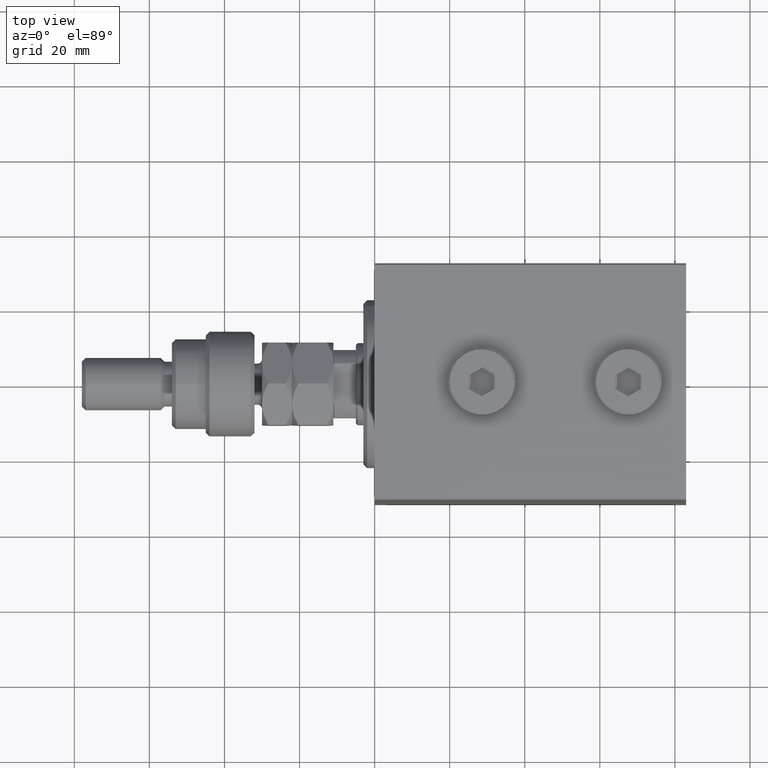
[diagram: clean part render]
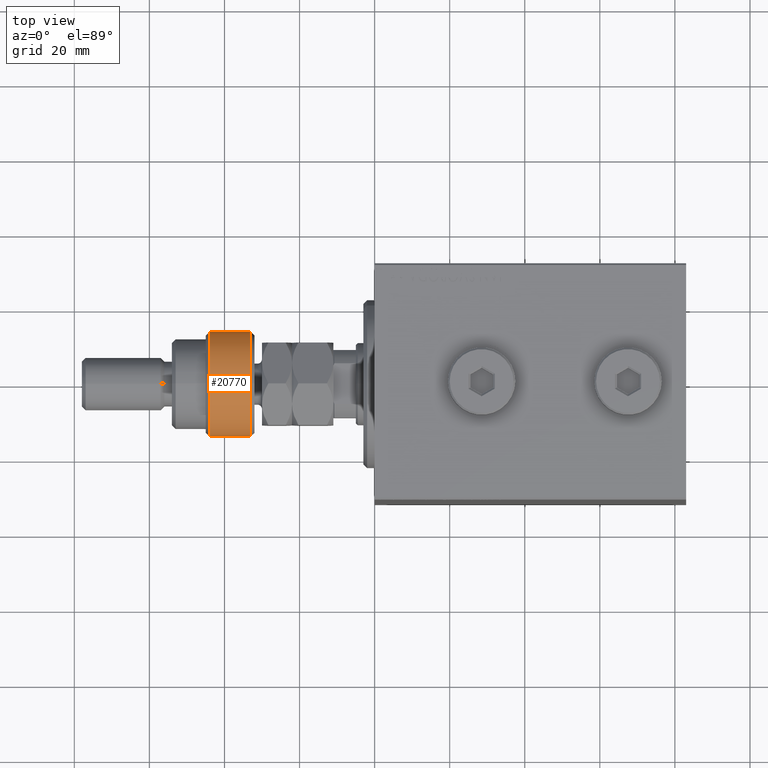
[diagram: same view with one face highlighted and labeled with its STEP entity id]
A machine part, top view. The second image highlights one B-rep face of the part: STEP entity #20770.
In plain terms, the highlighted cylindrical surface (partial cylindrical patch) has radius 14 mm, axis along (1, -0, -0).
Its self-contained STEP definition (entity closure, byte-faithful):
#148 = VERTEX_POINT ( 'NONE', #18008 ) ;
#228 = CARTESIAN_POINT ( 'NONE',  ( 14.00000000000000000, 0.000000000000000000, 1.000000000000032196 ) ) ;
#995 = ORIENTED_EDGE ( 'NONE', *, *, #17214, .F. ) ;
#2335 = EDGE_CURVE ( 'NONE', #23257, #6706, #20402, .T. ) ;
#2577 = LINE ( 'NONE', #10343, #13570 ) ;
#4001 = DIRECTION ( 'NONE',  ( -0.000000000000000000, -0.000000000000000000, -1.000000000000000000 ) ) ;
#5694 = CYLINDRICAL_SURFACE ( 'NONE', #40239, 14.00000000000000000 ) ;
#6706 = VERTEX_POINT ( 'NONE', #13170 ) ;
#7525 = VERTEX_POINT ( 'NONE', #47235 ) ;
#7650 = LINE ( 'NONE', #43940, #32382 ) ;
#8159 = AXIS2_PLACEMENT_3D ( 'NONE', #15248, #40880, #33159 ) ;
#9059 = ORIENTED_EDGE ( 'NONE', *, *, #2335, .T. ) ;
#10224 = ORIENTED_EDGE ( 'NONE', *, *, #47687, .T. ) ;
#10343 = CARTESIAN_POINT ( 'NONE',  ( -12.64911064067351809, -5.999999999999999112, 14.50000000000000000 ) ) ;
#10941 = EDGE_CURVE ( 'NONE', #22898, #7525, #14337, .T. ) ;
#12485 = CARTESIAN_POINT ( 'NONE',  ( 0.000000000000000000, 0.000000000000000000, 13.00000000000000000 ) ) ;
#13170 = CARTESIAN_POINT ( 'NONE',  ( -12.64911064067351809, -5.999999999999999112, 12.00000000000003553 ) ) ;
#13570 = VECTOR ( 'NONE', #25120, 1000.000000000000000 ) ;
#14337 = CIRCLE ( 'NONE', #8159, 14.00000000000000000 ) ;
#15248 = CARTESIAN_POINT ( 'NONE',  ( 0.000000000000000000, 0.000000000000000000, 1.000000000000032196 ) ) ;
#17214 = EDGE_CURVE ( 'NONE', #23257, #7525, #7650, .T. ) ;
#18008 = CARTESIAN_POINT ( 'NONE',  ( -12.64911064067351809, -5.999999999999999112, 1.000000000000035527 ) ) ;
#20402 = CIRCLE ( 'NONE', #47393, 14.00000000000000000 ) ;
#20505 = CIRCLE ( 'NONE', #45968, 14.00000000000000000 ) ;
#20770 = ADVANCED_FACE ( 'NONE', ( #38847 ), #5694, .T. ) ;
#21123 = CARTESIAN_POINT ( 'NONE',  ( 0.000000000000000000, 0.000000000000000000, 1.000000000000032196 ) ) ;
#22115 = ORIENTED_EDGE ( 'NONE', *, *, #10941, .T. ) ;
#22898 = VERTEX_POINT ( 'NONE', #228 ) ;
#23169 = DIRECTION ( 'NONE',  ( 0.000000000000000000, 0.000000000000000000, -1.000000000000000000 ) ) ;
#23257 = VERTEX_POINT ( 'NONE', #36010 ) ;
#25120 = DIRECTION ( 'NONE',  ( -0.000000000000000000, -0.000000000000000000, -1.000000000000000000 ) ) ;
#25481 = DIRECTION ( 'NONE',  ( -0.000000000000000000, -0.000000000000000000, 1.000000000000000000 ) ) ;
#27259 = DIRECTION ( 'NONE',  ( -1.000000000000000000, 0.000000000000000000, 0.000000000000000000 ) ) ;
#32382 = VECTOR ( 'NONE', #4001, 1000.000000000000000 ) ;
#33159 = DIRECTION ( 'NONE',  ( 1.000000000000000000, 0.000000000000000000, 0.000000000000000000 ) ) ;
#36010 = CARTESIAN_POINT ( 'NONE',  ( -12.64911064067351809, 6.000000000000000000, 12.00000000000003553 ) ) ;
#36111 = DIRECTION ( 'NONE',  ( 1.000000000000000000, 0.000000000000000000, 0.000000000000000000 ) ) ;
#37355 = EDGE_CURVE ( 'NONE', #6706, #148, #2577, .T. ) ;
#38389 = DIRECTION ( 'NONE',  ( -0.000000000000000000, -0.000000000000000000, -1.000000000000000000 ) ) ;
#38847 = FACE_OUTER_BOUND ( 'NONE', #42312, .T. ) ;
#40043 = ORIENTED_EDGE ( 'NONE', *, *, #37355, .T. ) ;
#40239 = AXIS2_PLACEMENT_3D ( 'NONE', #12485, #38389, #27259 ) ;
#40880 = DIRECTION ( 'NONE',  ( -0.000000000000000000, -0.000000000000000000, 1.000000000000000000 ) ) ;
#41520 = CARTESIAN_POINT ( 'NONE',  ( 0.000000000000000000, 0.000000000000000000, 12.00000000000003553 ) ) ;
#42312 = EDGE_LOOP ( 'NONE', ( #995, #9059, #40043, #10224, #22115 ) ) ;
#43940 = CARTESIAN_POINT ( 'NONE',  ( -12.64911064067351809, 6.000000000000000000, 14.50000000000000000 ) ) ;
#45134 = DIRECTION ( 'NONE',  ( 1.000000000000000000, 0.000000000000000000, 0.000000000000000000 ) ) ;
#45968 = AXIS2_PLACEMENT_3D ( 'NONE', #21123, #25481, #36111 ) ;
#47235 = CARTESIAN_POINT ( 'NONE',  ( -12.64911064067351809, 6.000000000000000000, 1.000000000000035527 ) ) ;
#47393 = AXIS2_PLACEMENT_3D ( 'NONE', #41520, #23169, #45134 ) ;
#47687 = EDGE_CURVE ( 'NONE', #148, #22898, #20505, .T. ) ;